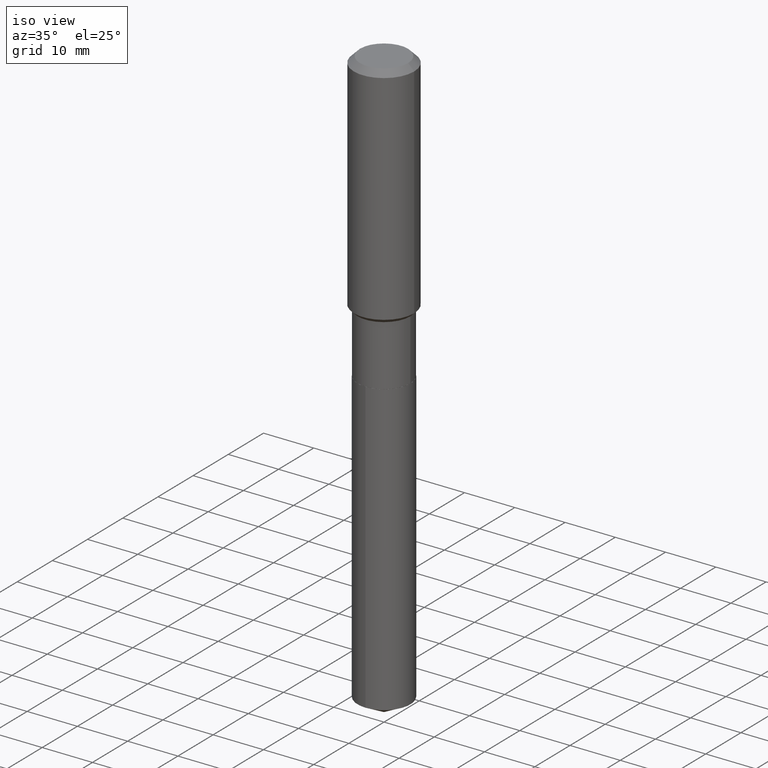
[diagram: clean part render]
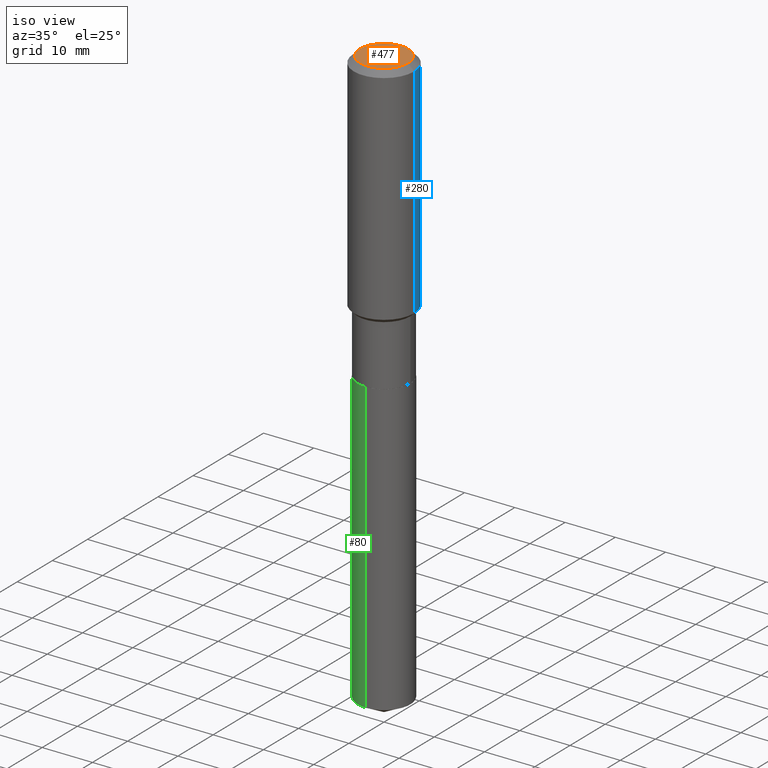
[diagram: same view with three faces highlighted in distinct colors, each labeled with its STEP entity id]
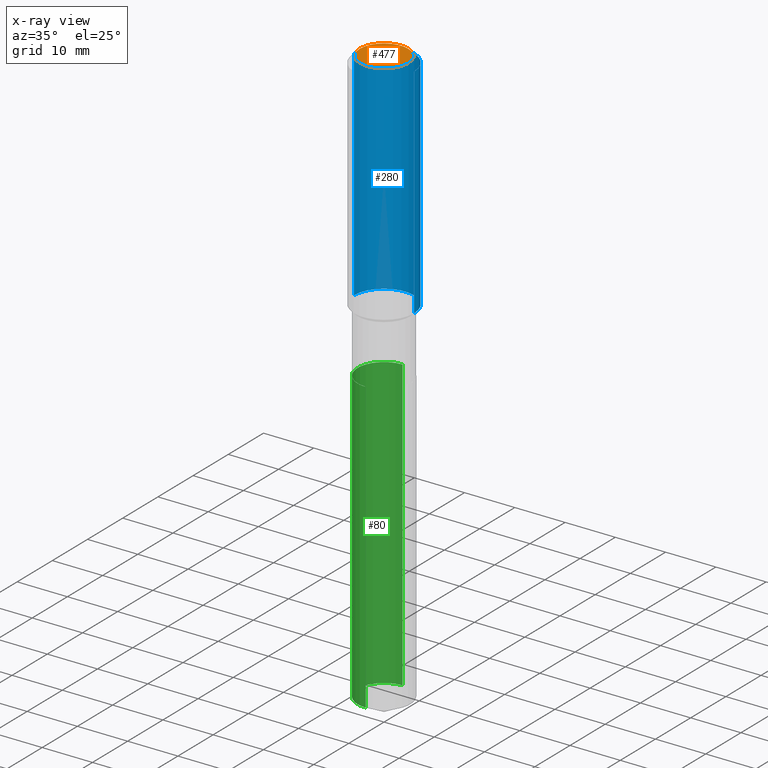
[diagram: x-ray of the same camera — body ghosted, the three highlighted faces saturated]
A machine part, iso view with three faces highlighted in distinct colors.
The next image is the same camera in x-ray (body ghosted, the three faces saturated) — at least one of them is partly hidden behind the body in this view.
Their STEP definitions:

[orange] entity #477 — the highlighted planar face has unit normal (0, -0, -1).
#1 = ORIENTED_EDGE ( 'NONE', *, *, #149, .T. ) ;
#43 = AXIS2_PLACEMENT_3D ( 'NONE', #482, #314, #432 ) ;
#50 = CARTESIAN_POINT ( 'NONE',  ( 0.1889600000000000168, -1.540873453589747738E-15, 3.855188123725863225E-18 ) ) ;
#57 = VERTEX_POINT ( 'NONE', #50 ) ;
#63 = FACE_OUTER_BOUND ( 'NONE', #476, .T. ) ;
#68 = CARTESIAN_POINT ( 'NONE',  ( -9.427742298522546243E-47, 1.346031739168365344E-32, 3.855188123715862256E-18 ) ) ;
#99 = ORIENTED_EDGE ( 'NONE', *, *, #222, .T. ) ;
#136 = DIRECTION ( 'NONE',  ( -1.000000000000000000, 6.982962677686265922E-15, -4.876176775795935793E-29 ) ) ;
#149 = EDGE_CURVE ( 'NONE', #57, #402, #379, .T. ) ;
#170 = CARTESIAN_POINT ( 'NONE',  ( -4.713871149261273121E-47, 6.730158695841826722E-33, 1.927594061857931128E-18 ) ) ;
#200 = PLANE ( 'NONE',  #296 ) ;
#207 = DIRECTION ( 'NONE',  ( -2.445468806185136597E-29, 3.491481338843145583E-15, 1.000000000000000000 ) ) ;
#222 = EDGE_CURVE ( 'NONE', #402, #57, #268, .T. ) ;
#268 = CIRCLE ( 'NONE', #43, 0.1889600000000000168 ) ;
#276 = CARTESIAN_POINT ( 'NONE',  ( -0.1889600000000000168, 1.401969416799070942E-15, 3.855188123706346622E-18 ) ) ;
#296 = AXIS2_PLACEMENT_3D ( 'NONE', #170, #487, #136 ) ;
#314 = DIRECTION ( 'NONE',  ( -2.445468806185136597E-29, 3.491481338843145583E-15, 1.000000000000000000 ) ) ;
#371 = DIRECTION ( 'NONE',  ( 1.000000000000000000, -6.982962677686266711E-15, 4.876185090822587894E-29 ) ) ;
#379 = CIRCLE ( 'NONE', #443, 0.1889600000000000168 ) ;
#402 = VERTEX_POINT ( 'NONE', #276 ) ;
#432 = DIRECTION ( 'NONE',  ( 1.000000000000000000, -6.982962677686266711E-15, 4.876185090822587894E-29 ) ) ;
#443 = AXIS2_PLACEMENT_3D ( 'NONE', #68, #207, #371 ) ;
#476 = EDGE_LOOP ( 'NONE', ( #99, #1 ) ) ;
#477 = ADVANCED_FACE ( 'NONE', ( #63 ), #200, .F. ) ;
#482 = CARTESIAN_POINT ( 'NONE',  ( -9.427742298522546243E-47, 1.346031739168365344E-32, 3.855188123715862256E-18 ) ) ;
#487 = DIRECTION ( 'NONE',  ( 2.438088387897960049E-29, -3.491481338843145188E-15, -1.000000000000000000 ) ) ;

[blue] entity #280 — the highlighted cylindrical surface (partial cylindrical patch) has radius 5.9995 mm, axis along (-0, 0, 1).
#14 = CARTESIAN_POINT ( 'NONE',  ( 0.2361999999999999933, -1.814313362916447440E-15, -0.04724000000000028177 ) ) ;
#41 = DIRECTION ( 'NONE',  ( -2.445468806185136877E-29, 3.491481338843145188E-15, 1.000000000000000000 ) ) ;
#69 = EDGE_LOOP ( 'NONE', ( #96, #125, #448, #102 ) ) ;
#75 = CIRCLE ( 'NONE', #256, 0.2361999999999999933 ) ;
#95 = DIRECTION ( 'NONE',  ( -2.445468806185136597E-29, 3.491481338843145583E-15, 1.000000000000000000 ) ) ;
#96 = ORIENTED_EDGE ( 'NONE', *, *, #434, .T. ) ;
#102 = ORIENTED_EDGE ( 'NONE', *, *, #489, .F. ) ;
#114 = DIRECTION ( 'NONE',  ( 1.000000000000000000, -6.982962677686266711E-15, 0.000000000000000000 ) ) ;
#125 = ORIENTED_EDGE ( 'NONE', *, *, #364, .T. ) ;
#145 = AXIS2_PLACEMENT_3D ( 'NONE', #238, #95, #390 ) ;
#148 = LINE ( 'NONE', #215, #455 ) ;
#150 = CARTESIAN_POINT ( 'NONE',  ( -0.2362000000000002153, -4.462864585025847885E-15, -1.758899999999999464 ) ) ;
#171 = VERTEX_POINT ( 'NONE', #150 ) ;
#197 = DIRECTION ( 'NONE',  ( 1.000000000000000000, -6.982962677686266711E-15, 0.000000000000000000 ) ) ;
#215 = CARTESIAN_POINT ( 'NONE',  ( 0.2362000000000001043, -1.649375784469496920E-15, 1.151752954443000508E-29 ) ) ;
#220 = EDGE_CURVE ( 'NONE', #409, #363, #75, .T. ) ;
#230 = CARTESIAN_POINT ( 'NONE',  ( 1.155239464041865506E-30, -1.649375784469511859E-16, -0.04724000000000028177 ) ) ;
#238 = CARTESIAN_POINT ( 'NONE',  ( 0.000000000000000000, 0.000000000000000000, 0.000000000000000000 ) ) ;
#256 = AXIS2_PLACEMENT_3D ( 'NONE', #230, #392, #197 ) ;
#260 = CARTESIAN_POINT ( 'NONE',  ( -0.2362000000000001043, 1.678301941865357380E-15, -1.161852468318209317E-29 ) ) ;
#280 = ADVANCED_FACE ( 'NONE', ( #320 ), #436, .T. ) ;
#301 = CARTESIAN_POINT ( 'NONE',  ( -0.2361999999999999933, -1.474750110803721400E-15, -0.04724000000000028177 ) ) ;
#320 = FACE_OUTER_BOUND ( 'NONE', #69, .T. ) ;
#363 = VERTEX_POINT ( 'NONE', #301 ) ;
#364 = EDGE_CURVE ( 'NONE', #171, #363, #464, .T. ) ;
#365 = VERTEX_POINT ( 'NONE', #474 ) ;
#377 = CIRCLE ( 'NONE', #399, 0.2362000000000002153 ) ;
#390 = DIRECTION ( 'NONE',  ( 1.000000000000000000, -6.982962677686266711E-15, 4.876176775795935793E-29 ) ) ;
#392 = DIRECTION ( 'NONE',  ( -2.445468806185136597E-29, 3.491481338843145583E-15, 1.000000000000000000 ) ) ;
#399 = AXIS2_PLACEMENT_3D ( 'NONE', #458, #412, #114 ) ;
#405 = VECTOR ( 'NONE', #41, 39.37007874015748143 ) ;
#409 = VERTEX_POINT ( 'NONE', #14 ) ;
#412 = DIRECTION ( 'NONE',  ( -2.445468806185136597E-29, 3.491481338843145583E-15, 1.000000000000000000 ) ) ;
#420 = DIRECTION ( 'NONE',  ( -2.445468806185136877E-29, 3.491481338843145188E-15, 1.000000000000000000 ) ) ;
#434 = EDGE_CURVE ( 'NONE', #365, #171, #377, .T. ) ;
#436 = CYLINDRICAL_SURFACE ( 'NONE', #145, 0.2362000000000001043 ) ;
#448 = ORIENTED_EDGE ( 'NONE', *, *, #220, .F. ) ;
#455 = VECTOR ( 'NONE', #420, 39.37007874015748143 ) ;
#458 = CARTESIAN_POINT ( 'NONE',  ( 4.301335083199035081E-29, -6.141166526891206646E-15, -1.758899999999999464 ) ) ;
#464 = LINE ( 'NONE', #260, #405 ) ;
#474 = CARTESIAN_POINT ( 'NONE',  ( 0.2362000000000002153, -7.790542311360703960E-15, -1.758899999999999464 ) ) ;
#489 = EDGE_CURVE ( 'NONE', #365, #409, #148, .T. ) ;

[green] entity #80 — the highlighted cylindrical surface (edge-blend (fillet) strip) has radius 5.2502 mm, axis along (-0, 0, 1).
#2 = EDGE_CURVE ( 'NONE', #283, #4, #235, .T. ) ;
#4 = VERTEX_POINT ( 'NONE', #154 ) ;
#16 = DIRECTION ( 'NONE',  ( -6.982962677686265133E-15, -1.000000000000000000, 2.643297526525653668E-15 ) ) ;
#22 = CARTESIAN_POINT ( 'NONE',  ( 1.468691834816237291E-15, 0.2066999999999841187, -4.535795660475574032 ) ) ;
#56 = DIRECTION ( 'NONE',  ( -2.445496147551325401E-29, 3.491442184450589334E-15, 1.000000000000000000 ) ) ;
#80 = ADVANCED_FACE ( 'NONE', ( #269 ), #279, .T. ) ;
#87 = DIRECTION ( 'NONE',  ( -2.445496147551325401E-29, 3.491442184450589334E-15, 1.000000000000000000 ) ) ;
#93 = LINE ( 'NONE', #369, #344 ) ;
#143 = EDGE_CURVE ( 'NONE', #481, #272, #308, .T. ) ;
#154 = CARTESIAN_POINT ( 'NONE',  ( -1.443378385477640183E-15, -0.2067000000000157878, -4.535795660475572255 ) ) ;
#169 = AXIS2_PLACEMENT_3D ( 'NONE', #468, #87, #16 ) ;
#173 = AXIS2_PLACEMENT_3D ( 'NONE', #435, #231, #394 ) ;
#179 = LINE ( 'NONE', #304, #213 ) ;
#186 = EDGE_CURVE ( 'NONE', #283, #481, #179, .T. ) ;
#213 = VECTOR ( 'NONE', #56, 39.37007874015748143 ) ;
#225 = CARTESIAN_POINT ( 'NONE',  ( -1.443378385477695995E-15, -0.2067000000000079052, -2.263799999999998924 ) ) ;
#231 = DIRECTION ( 'NONE',  ( -2.445496147551325401E-29, 3.491442184450589334E-15, 1.000000000000000000 ) ) ;
#235 = CIRCLE ( 'NONE', #169, 0.2067000000000000226 ) ;
#239 = EDGE_LOOP ( 'NONE', ( #252, #313, #290, #410 ) ) ;
#245 = DIRECTION ( 'NONE',  ( -2.445496147551325401E-29, 3.491442184450589334E-15, 1.000000000000000000 ) ) ;
#252 = ORIENTED_EDGE ( 'NONE', *, *, #186, .F. ) ;
#269 = FACE_OUTER_BOUND ( 'NONE', #239, .T. ) ;
#272 = VERTEX_POINT ( 'NONE', #225 ) ;
#279 = CYLINDRICAL_SURFACE ( 'NONE', #173, 0.2067000000000000226 ) ;
#283 = VERTEX_POINT ( 'NONE', #22 ) ;
#290 = ORIENTED_EDGE ( 'NONE', *, *, #327, .T. ) ;
#304 = CARTESIAN_POINT ( 'NONE',  ( 1.468691834816182268E-15, 0.2066999999999921123, -2.263800000000000701 ) ) ;
#308 = CIRCLE ( 'NONE', #461, 0.2067000000000000226 ) ;
#313 = ORIENTED_EDGE ( 'NONE', *, *, #2, .T. ) ;
#327 = EDGE_CURVE ( 'NONE', #4, #272, #93, .T. ) ;
#344 = VECTOR ( 'NONE', #378, 39.37007874015748143 ) ;
#346 = CARTESIAN_POINT ( 'NONE',  ( 1.468691834816238474E-15, 0.2066999999999921123, -2.263800000000000701 ) ) ;
#369 = CARTESIAN_POINT ( 'NONE',  ( -1.443378385477695995E-15, -0.2067000000000079052, -2.263799999999998924 ) ) ;
#378 = DIRECTION ( 'NONE',  ( -2.445496147551325401E-29, 3.491442184450589334E-15, 1.000000000000000000 ) ) ;
#394 = DIRECTION ( 'NONE',  ( -6.982962677686265133E-15, -1.000000000000000000, 3.964946289788480107E-15 ) ) ;
#408 = DIRECTION ( 'NONE',  ( -6.982962677686265133E-15, -1.000000000000000000, 3.964946289788480107E-15 ) ) ;
#410 = ORIENTED_EDGE ( 'NONE', *, *, #143, .F. ) ;
#411 = CARTESIAN_POINT ( 'NONE',  ( 5.536052283441911489E-29, -7.904015454873111947E-15, -2.263799999999999812 ) ) ;
#435 = CARTESIAN_POINT ( 'NONE',  ( 5.536052283441911489E-29, -7.904015454873111947E-15, -2.263799999999999812 ) ) ;
#461 = AXIS2_PLACEMENT_3D ( 'NONE', #411, #245, #408 ) ;
#468 = CARTESIAN_POINT ( 'NONE',  ( 1.109220891838825570E-28, -1.583655694674620916E-14, -4.535795660475573143 ) ) ;
#481 = VERTEX_POINT ( 'NONE', #346 ) ;